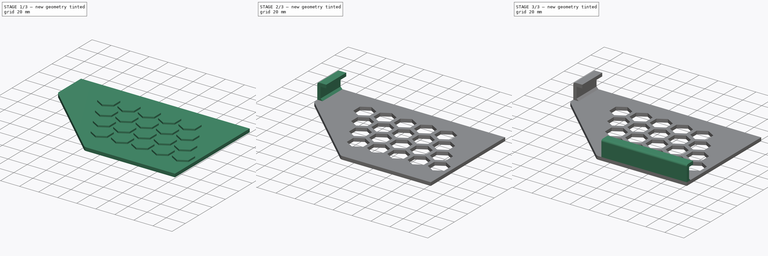
[diagram: build sequence overview — one tinted view per stage of 3, left to right]
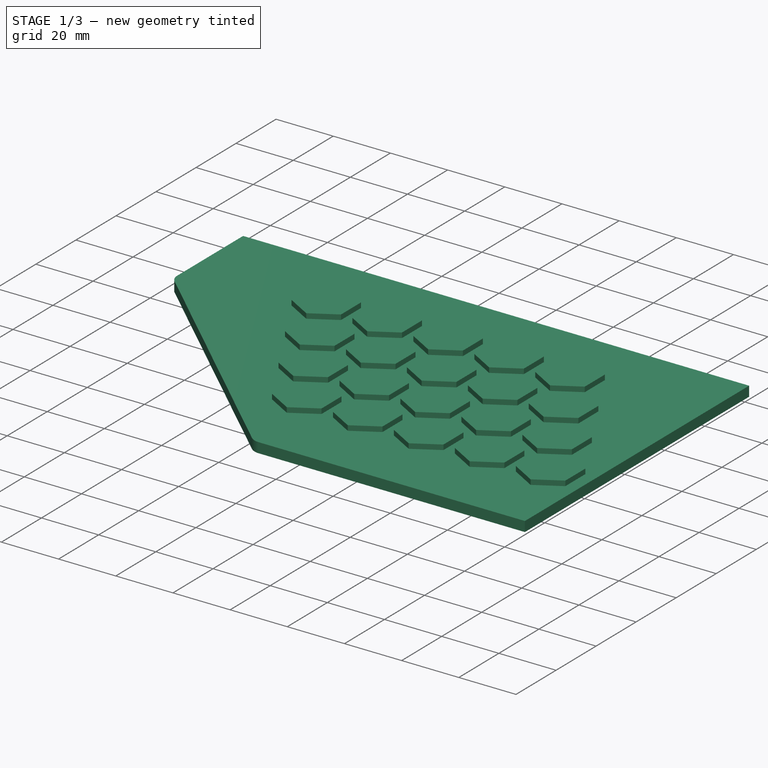
[diagram: stage 1 of 3 — iso view after this stage's code; geometry added in this stage tinted green]
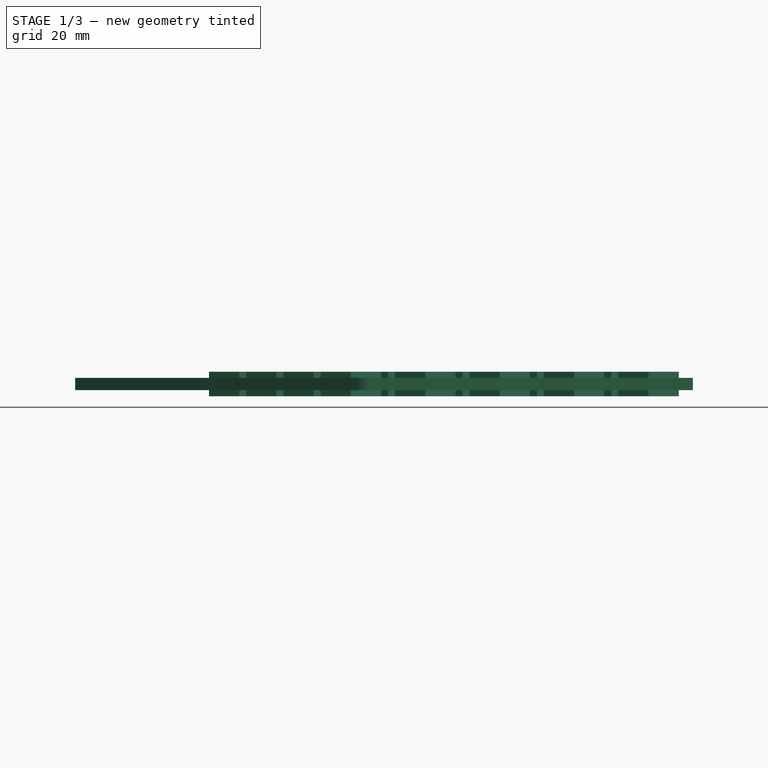
[diagram: stage 1 of 3 — front view after this stage's code; geometry added in this stage tinted green]
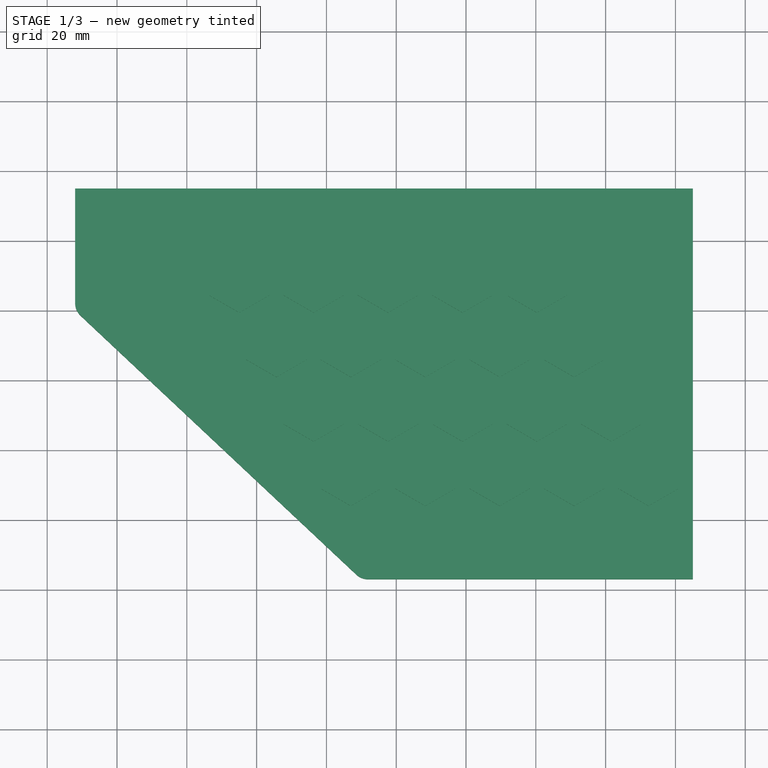
[diagram: stage 1 of 3 — top view after this stage's code; geometry added in this stage tinted green]
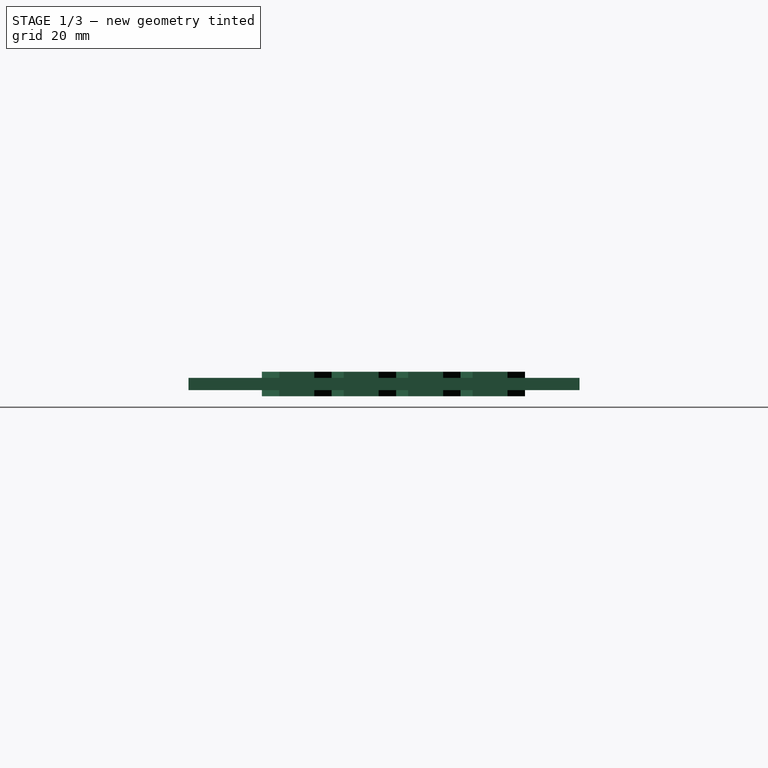
[diagram: stage 1 of 3 — right view after this stage's code; geometry added in this stage tinted green]
FCSTD DOCUMENT  (FreeCAD 1.1R20260414 (Git shallow))
Label: two
License: All rights reserved
LicenseURL: https://en.wikipedia.org/wiki/All_rights_reserved
objects: Sketcher::SketchObject×4, PartDesign::Pad×3, App::Point×2, PartDesign::Body×2, Part::FeaturePython×2, App::VarSet×1, Part::Extrusion×1, Part::Cut×1
note: 22 computed .brp shape members not serialized (recipe doc carries the construction recipe); baked Part::Feature solids carry a one-line shape summary decoded from their .brp

FEATURE [PartDesign::Body] Body002  label="brackets"
  AllowCompound = true
  Group = -> [Sketch,Pad,Sketch001,Pad001]
  Origin = -> Origin004
  Tip = -> Pad001
FEATURE [Sketcher::SketchObject] Sketch002  label="back_solid_sketch"
  ArcFitTolerance = 1e-06
  AttachmentSupport = -> [Origin]
  ExternalTypes = [0]
  FullyConstrained = true
  MakeInternals = false
  MapMode = 5
  _ExternalGeoVersion = 1
  expr: Constraints[10] = (VarSet.case_height + VarSet.bottom_bracket_width) / 2 + VarSet.model_thickness
  expr: Constraints[15] = VarSet.backplate_smooth_radius
  expr: Constraints[20] = VarSet.backplate_smooth_radius
  expr: Constraints[21] = VarSet.bottom_bracket_width / 2
  expr: Constraints[22] = VarSet.side_bracket_width / 2
  expr: Constraints[7] = VarSet.side_bracket_width + VarSet.backplate_smooth_radius
  expr: Constraints[8] = VarSet.bottom_bracket_width + VarSet.backplate_smooth_radius
  expr: Constraints[9] = (VarSet.case_width + VarSet.side_bracket_width) / 2 + VarSet.model_thickness
  sketch-geometry (9):
    g0: LineSegment StartX=-132 StartY=15 StartZ=0 EndX=45 EndY=15 EndZ=0
    g1: LineSegment StartX=45 StartY=15 StartZ=0 EndX=45 EndY=-97 EndZ=0
    g2: LineSegment StartX=45 StartY=-97 StartZ=0 EndX=-48.0204 EndY=-97 EndZ=0
    g3: LineSegment StartX=-51.4431 StartY=-95.6449 StartZ=0 EndX=-130.423 EndY=-21.4812 EndZ=0
    g4: LineSegment StartX=-132 StartY=-17.8362 StartZ=0 EndX=-132 EndY=15 EndZ=0
    g5: ArcOfCircle CenterX=-127 CenterY=-17.8362 CenterZ=0 NormalX=0 NormalY=0 NormalZ=1 AngleXU=0 Radius=5 StartAngle=3.14159 EndAngle=3.95843
    g6: GeomPoint [constr] X=-132 Y=-20 Z=0
    g7: ArcOfCircle CenterX=-48.0204 CenterY=-92 CenterZ=0 NormalX=0 NormalY=0 NormalZ=1 AngleXU=0 Radius=5 StartAngle=3.95843 EndAngle=4.71239
    g8: GeomPoint [constr] X=-50 Y=-97 Z=0
  constraints (23):
    c: Horizontal(g0)
    c: Coincident(g0,g1)
    c: Coincident(g1,g2)
    c: Coincident(g4,g0)
    c: Vertical(g4)
    c: Vertical(g1)
    c: Horizontal(g2)
    c: Distance(g4,g6) = 35
    c: Distance(g2,g8) = 95
    c: Distance(g1) = 112
    c: Distance(g0) = 177
    c: PointOnObject(g6,g3)
    c: PointOnObject(g6,g4)
    c: Tangent(g3,g5) = 1.5708
    c: Tangent(g4,g5) = 1.5708
    c: Radius(g5) = 5
    c: PointOnObject(g8,g2)
    c: PointOnObject(g8,g3)
    c: Tangent(g2,g7) = 1.5708
    c: Tangent(g3,g7) = 1.5708
    c: Radius(g7) = 5
    c: DistanceX(g0) = 45
    c: DistanceY(g0) = 15
FEATURE [PartDesign::Pad] Pad002  label="back_solid_pad"
  Direction = (0,0,1)
  Length = 3.5
  Length2 = 10
  Profile = -> Sketch002
  ReferenceAxis = -> Sketch002 [N_Axis]
  Refine = true
  SideType = 0
  Suppressed = false
  Type = 0
  Type2 = 0
  expr: Length = VarSet.model_thickness
FEATURE [Sketcher::SketchObject] Sketch003  label="hex_sketch"
  ArcFitTolerance = 1e-06
  AttachmentSupport = -> [Origin]
  ExternalTypes = [0]
  FullyConstrained = true
  MakeInternals = false
  MapMode = 5
  _ExternalGeoVersion = 1
  expr: Constraints[20] = VarSet.hex_diameter
  sketch-geometry (7):
    g0: LineSegment StartX=8.66025 StartY=-5 StartZ=0 EndX=8.66025 EndY=5 EndZ=0
    g1: LineSegment StartX=8.66025 StartY=5 StartZ=0 EndX=-2e-16 EndY=10 EndZ=0
    g2: LineSegment StartX=0 StartY=10 StartZ=0 EndX=-8.66025 EndY=5 EndZ=0
    g3: LineSegment StartX=-8.66025 StartY=5 StartZ=0 EndX=-8.66025 EndY=-5 EndZ=0
    g4: LineSegment StartX=-8.66025 StartY=-5 StartZ=0 EndX=-1.3e-15 EndY=-10 EndZ=0
    g5: LineSegment StartX=-1.6e-15 StartY=-10 StartZ=0 EndX=8.66025 EndY=-5 EndZ=0
    g6: Circle [constr] CenterX=0 CenterY=0 CenterZ=0 NormalX=0 NormalY=0 NormalZ=1 AngleXU=0 Radius=10
  constraints (17):
    c: Coincident(g0,g1)
    c: Coincident(g1,g2)
    c: Coincident(g2,g3)
    c: Coincident(g3,g4)
    c: Coincident(g4,g5)
    c: Coincident(g5,g0)
    c: Equal(g0, g1-g5) x5
    c: PointOnObject(g0,g6)
    c: PointOnObject(g1,g6)
    c: PointOnObject(g2,g6)
    c: PointOnObject(g3,g6)
    c: PointOnObject(g4,g6)
    c: PointOnObject(g5,g6)
    c: DistanceX(g6,g-1) = 0
    c: DistanceY(g6,g-1) = 0
    c: DistanceX(g1,g6) = 0
    c: Diameter(g6) = 20
FEATURE [PartDesign::Body] Body  label="back"
  AllowCompound = true
  Group = -> [Sketch002,Pad002,Sketch003]
  Origin = -> Origin
  Tip = -> Pad002
FEATURE [Part::FeaturePython] Array  label="hex_array"  # Draft array (typed FeaturePython)
  AlwaysSyncPlacement = false
  Angle = 360
  ArrayType = 0
  Axis = (0,0,1)
  Base = -> Sketch003
  Center = (0,0,0)
  Count = 20
  ExpandArray = false
  Fuse = false
  IntervalAxis = (0,0,0)
  IntervalX = (21.3205,0,0)
  IntervalY = (-10.6603,18.464,0)
  IntervalZ = (0,0,100)
  NumberCircles = 3
  NumberPolar = 5
  NumberX = 5
  NumberY = 4
  NumberZ = 1
  Placement = pos=(-53,-66,0) rot=(0,0,1;0rad)
  PlacementList = 20 placements: [(0,0,0),(-10.6603,18.464,0),(-21.3205,36.928,0),(-31.9808,55.392,0),(21.3205,0,0),(10.6603,18.464,0),(0,36.928,0),(-10.6603,55.392,0),(42.641,0,0),(31.9808,18.464,0),(21.3205,36.928,0),(10.6603,55.392,0),(63.9615,0,0),(53.3013,18.464,0),(42.641,36.928,0),(31.9808,55.392,0),(85.2821,0,0),(74.6218,18.464,0),(63.9615,36.928,0),(53.3013,55.392,0)]
  RadialDistance = 50
  ScaleList = (20) [(1,1,1),(1,1,1),(1,1,1),(1,1,1),(1,1,1),(1,1,1),(1,1,1),(1,1,1),(1,1,1),(1,1,1),(1,1,1),(1,1,1),(1,1,1),(1,1,1),(1,1,1),(1,1,1),(1,1,1),(1,1,1),(1,1,1),(1,1,1)]
  Symmetry = 1
  TangentialDistance = 25
  expr: .IntervalX.x = VarSet.hex_diameter / 1.1547 + VarSet.hex_gap
  expr: .IntervalY.x = -1 * (VarSet.hex_diameter / 1.1547 + VarSet.hex_gap) / 2
  expr: .IntervalY.y = VarSet.hex_diameter * 0.75 + VarSet.hex_gap * 0.866
FEATURE [Part::Extrusion] Extrude
  Base = -> Array
  Dir = (0,0,1)
  DirMode = 2
  FaceMakerClass = Part::FaceMakerBullseye
  FaceMakerMode = 3
  InnerWireTaper = 0
  LengthFwd = 7
  LengthRev = 0
  Placement = pos=(0,0,-1.75) rot=(0,0,1;0rad)
  Solid = true
  Symmetric = false
  expr: .Placement.Base.z = -VarSet.model_thickness / 2
  expr: LengthFwd = VarSet.model_thickness * 2
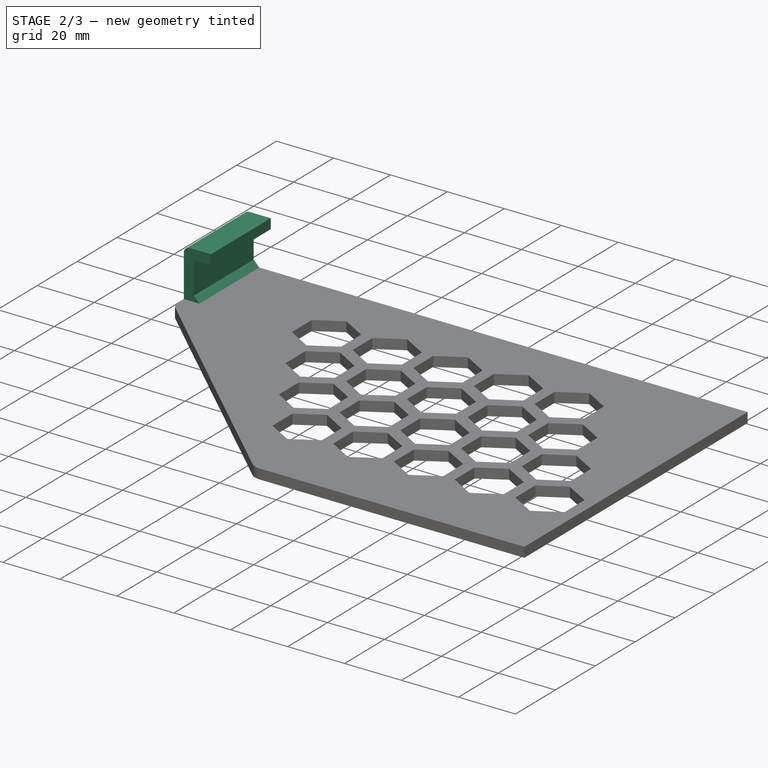
[diagram: stage 2 of 3 — iso view after this stage's code; geometry added in this stage tinted green]
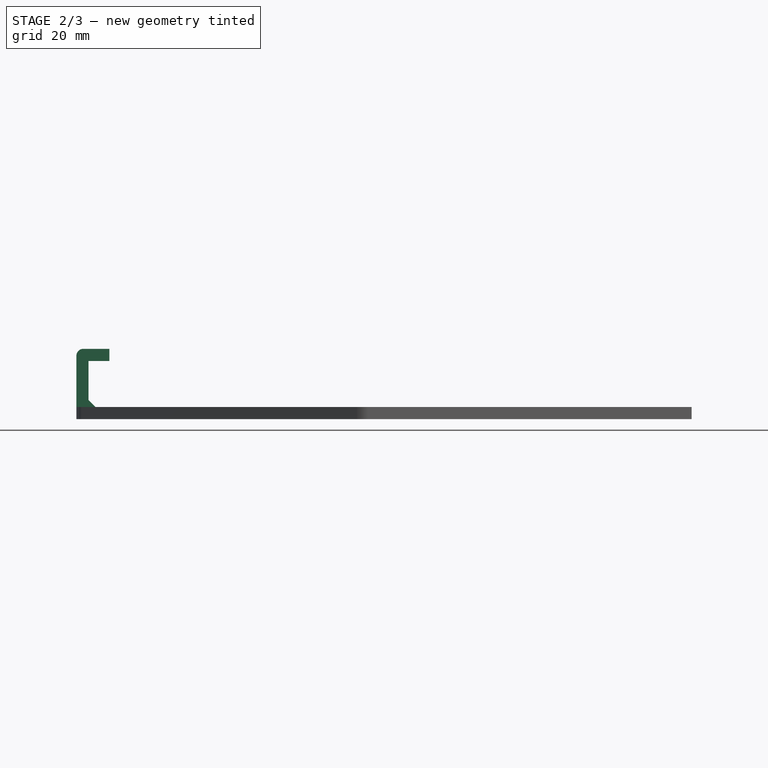
[diagram: stage 2 of 3 — front view after this stage's code; geometry added in this stage tinted green]
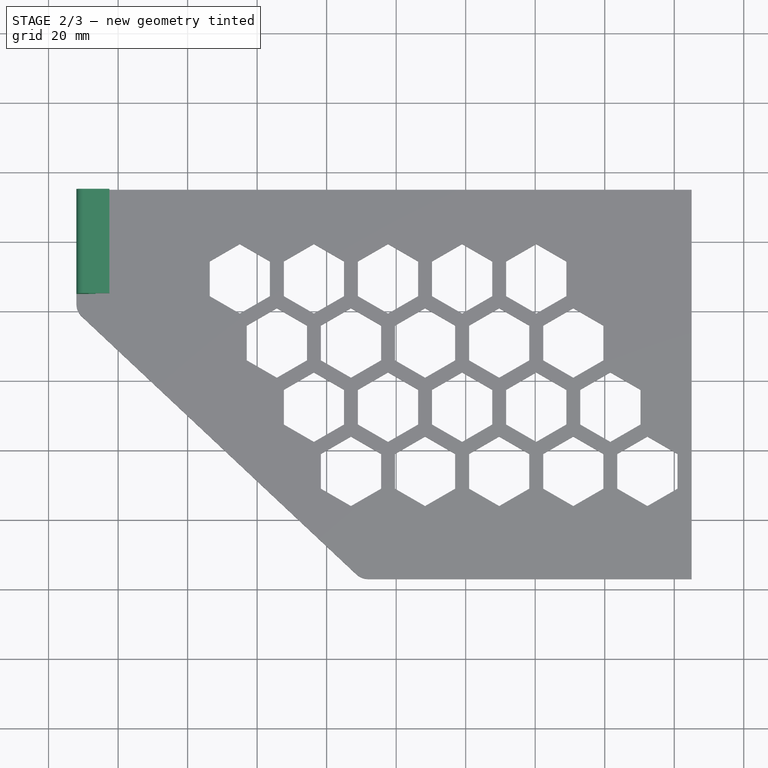
[diagram: stage 2 of 3 — top view after this stage's code; geometry added in this stage tinted green]
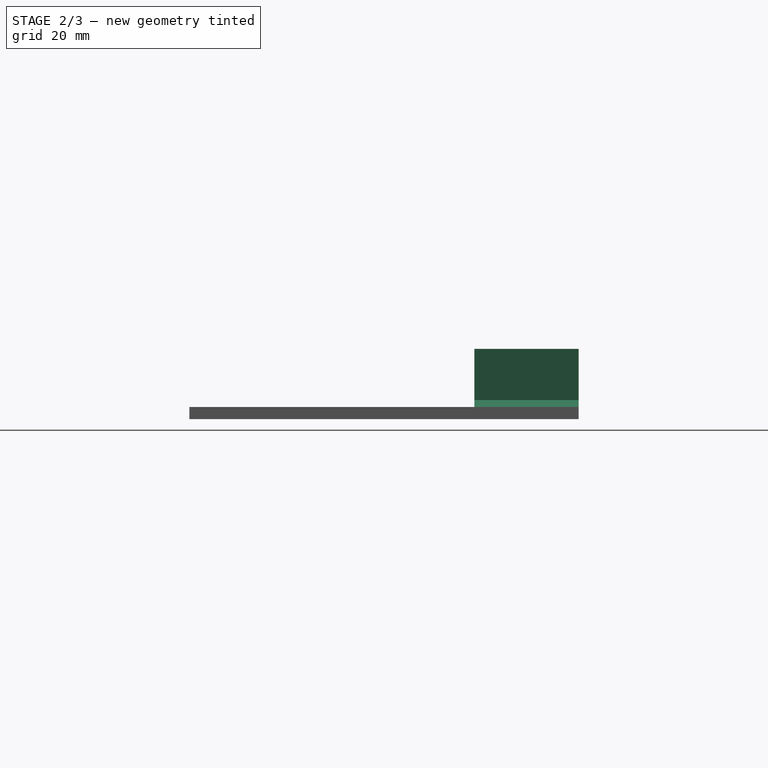
[diagram: stage 2 of 3 — right view after this stage's code; geometry added in this stage tinted green]
FEATURE [App::Point] Origin001
  Role = Origin
FEATURE [App::VarSet] VarSet
  backplate_smooth_radius = 5
  bottom_bracket_width = 90
  bottom_chamfer = 2
  bracket_overhang = 6
  case_height = 257
  case_thickness = 13.24
  case_width = 187
  corner_protrusion = 3
  corner_radius = 16
  corner_thickness = 16
  hex_diameter = 20
  hex_gap = 4
  model_thickness = 3.5
  side_bracket_width = 30
FEATURE [App::Point] Origin005  label="Origin006"
  Role = Origin
FEATURE [Sketcher::SketchObject] Sketch
  ArcFitTolerance = 1e-06
  AttachmentOffset = pos=(0,0,-15) rot=(0,0,1;0rad)
  AttachmentSupport = -> [Origin004]
  ExternalTypes = [0]
  FullyConstrained = true
  MakeInternals = false
  MapMode = 5
  Placement = pos=(0,15,-3.3e-15) rot=(1,0,0;1.5708rad)
  _ExternalGeoVersion = 1
  expr: .AttachmentOffset.Base.z = -VarSet.side_bracket_width / 2
  expr: Constraints[14] = VarSet.model_thickness
  expr: Constraints[15] = VarSet.case_thickness + 2 * VarSet.model_thickness
  expr: Constraints[16] = VarSet.bracket_overhang + VarSet.model_thickness
  expr: Constraints[17] = -(VarSet.case_height / 2 + VarSet.model_thickness)
  expr: Constraints[19] = VarSet.bottom_chamfer
  expr: Constraints[20] = VarSet.bottom_chamfer
  expr: Constraints[21] = VarSet.model_thickness
  expr: Constraints[22] = VarSet.model_thickness
  sketch-geometry (10):
    g0: LineSegment StartX=-122.5 StartY=20.24 StartZ=0 EndX=-130 EndY=20.24 EndZ=0
    g1: LineSegment StartX=-132 StartY=18.24 StartZ=0 EndX=-132 EndY=0 EndZ=0
    g2: LineSegment StartX=-132 StartY=0 StartZ=0 EndX=-126.5 EndY=0 EndZ=0
    g3: LineSegment StartX=-126.5 StartY=0 StartZ=0 EndX=-126.5 EndY=3.5 EndZ=0
    g4: LineSegment StartX=-126.5 StartY=3.5 StartZ=0 EndX=-128.5 EndY=5.5 EndZ=0
    g5: LineSegment StartX=-128.5 StartY=5.5 StartZ=0 EndX=-128.5 EndY=16.74 EndZ=0
    g6: LineSegment StartX=-128.5 StartY=16.74 StartZ=0 EndX=-122.5 EndY=16.74 EndZ=0
    g7: LineSegment StartX=-122.5 StartY=16.74 StartZ=0 EndX=-122.5 EndY=20.24 EndZ=0
    g8: ArcOfCircle CenterX=-130 CenterY=18.24 CenterZ=0 NormalX=0 NormalY=0 NormalZ=1 AngleXU=0 Radius=2 StartAngle=1.5708 EndAngle=3.14159
    g9: GeomPoint [constr] X=-132 Y=20.24 Z=0
  constraints (28):
    c: Coincident(g1,g2)
    c: Coincident(g2,g3)
    c: Coincident(g3,g4)
    c: Coincident(g4,g5)
    c: Coincident(g5,g6)
    c: Coincident(g6,g7)
    c: Coincident(g7,g0)
    c: Vertical(g1)
    c: Horizontal(g0)
    c: Vertical(g7)
    c: Horizontal(g6)
    c: Vertical(g5)
    c: Vertical(g3)
    c: Horizontal(g2)
    c: Distance(g7) = 3.5
    c: Distance(g1,g9) = 20.24
    c: Distance(g0,g9) = 9.5
    c: DistanceX(g1) = -132
    c: DistanceY(g1) = 0
    c: DistanceY(g3,g4) = 2
    c: DistanceX(g4,g3) = 2
    c: Distance(g3) = 3.5
    c: DistanceX(g9,g5) = 3.5
    c: PointOnObject(g9,g0)
    c: PointOnObject(g9,g1)
    c: Tangent(g0,g8) = -1.5708
    c: Tangent(g1,g8) = -1.5708
    c: Radius(g8) = 2
FEATURE [PartDesign::Pad] Pad  label="side_bracket"
  Direction = (0,-1,2e-16)
  Length = 30
  Length2 = 10
  Profile = -> Sketch
  ReferenceAxis = -> Sketch [N_Axis]
  Refine = true
  SideType = 0
  Suppressed = false
  Type = 0
  Type2 = 0
  expr: Length = VarSet.side_bracket_width
FEATURE [Part::Cut] Cut
  Base = -> Body
  Refine = true
  Tool = -> Extrude
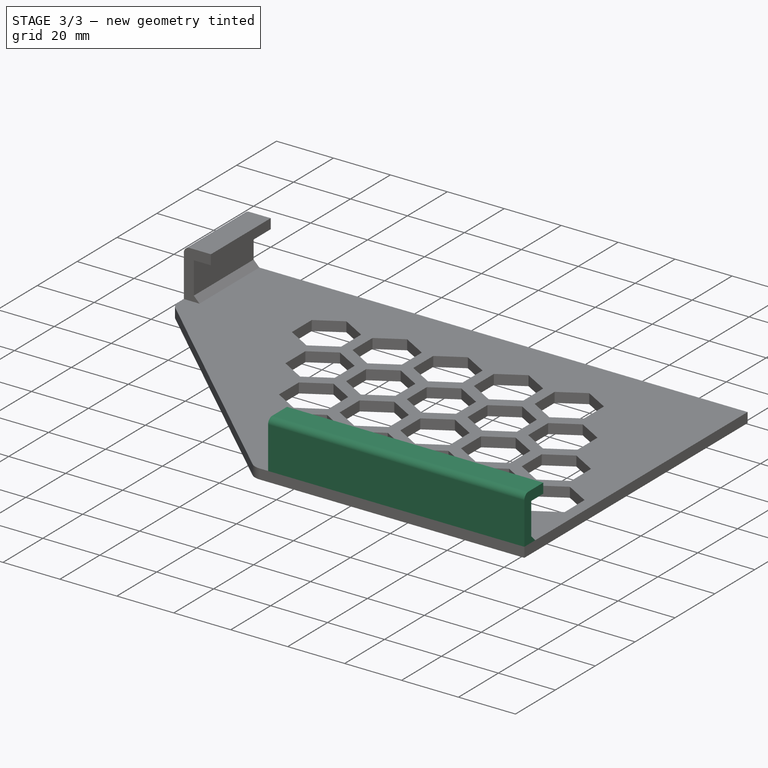
[diagram: stage 3 of 3 — iso view after this stage's code; geometry added in this stage tinted green]
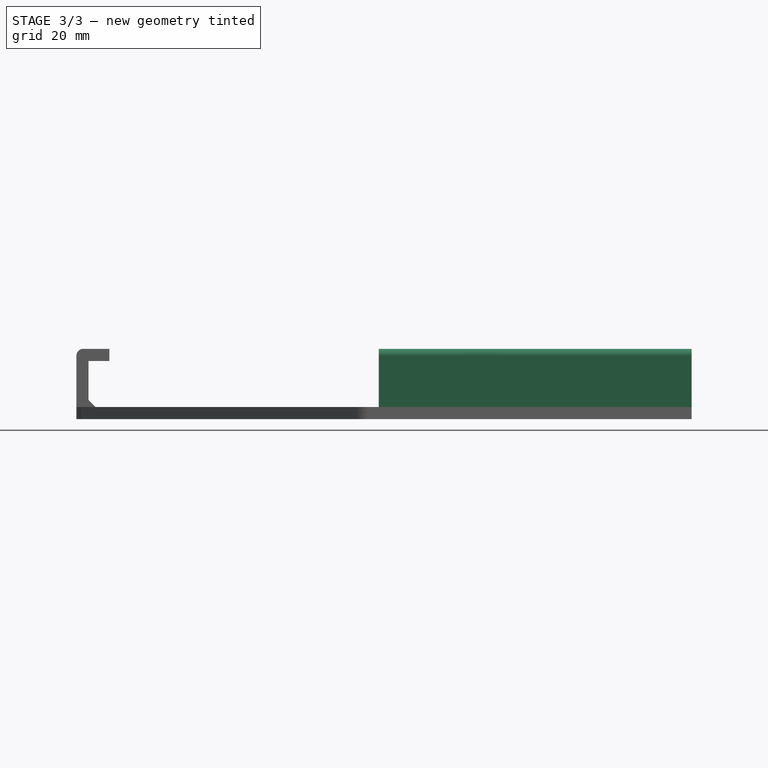
[diagram: stage 3 of 3 — front view after this stage's code; geometry added in this stage tinted green]
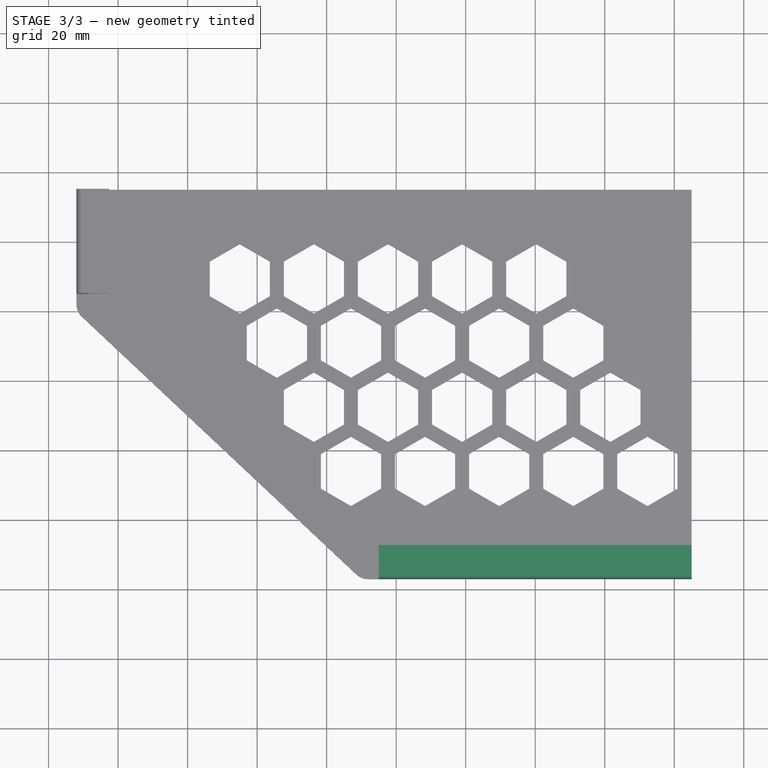
[diagram: stage 3 of 3 — top view after this stage's code; geometry added in this stage tinted green]
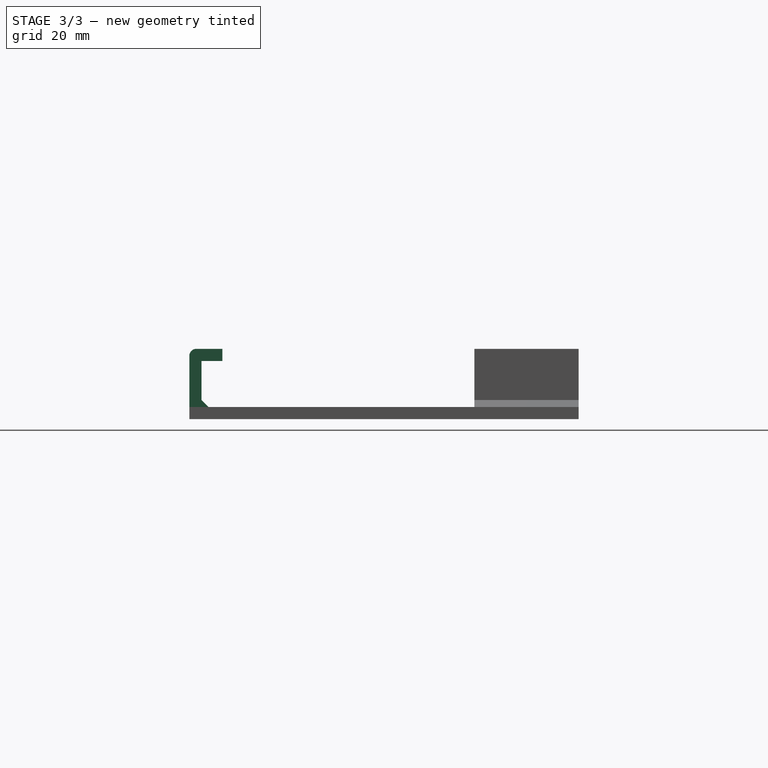
[diagram: stage 3 of 3 — right view after this stage's code; geometry added in this stage tinted green]
FEATURE [Sketcher::SketchObject] Sketch001
  ArcFitTolerance = 1e-06
  AttachmentOffset = pos=(0,0,-45) rot=(0,0,1;0rad)
  AttachmentSupport = -> [Origin004]
  ExternalTypes = [0]
  FullyConstrained = true
  MakeInternals = false
  MapMode = 5
  Placement = pos=(-45,0,0) rot=(0.57735,0.57735,0.57735;2.0944rad)
  _ExternalGeoVersion = 1
  expr: .AttachmentOffset.Base.z = -VarSet.bottom_bracket_width / 2
  expr: Constraints[13] = VarSet.bracket_overhang
  expr: Constraints[15] = VarSet.model_thickness
  expr: Constraints[16] = VarSet.model_thickness
  expr: Constraints[17] = VarSet.case_thickness
  expr: Constraints[18] = VarSet.model_thickness
  expr: Constraints[19] = VarSet.bottom_chamfer
  expr: Constraints[20] = VarSet.bottom_chamfer
  expr: Constraints[21] = -(VarSet.case_width / 2 + VarSet.model_thickness)
  sketch-geometry (10):
    g0: LineSegment StartX=-87.5 StartY=20.24 StartZ=0 EndX=-95 EndY=20.24 EndZ=0
    g1: LineSegment StartX=-97 StartY=18.24 StartZ=0 EndX=-97 EndY=0 EndZ=0
    g2: LineSegment StartX=-97 StartY=0 StartZ=0 EndX=-91.5 EndY=0 EndZ=0
    g3: LineSegment StartX=-91.5 StartY=0 StartZ=0 EndX=-91.5 EndY=3.5 EndZ=0
    g4: LineSegment StartX=-91.5 StartY=3.5 StartZ=0 EndX=-93.5 EndY=5.5 EndZ=0
    g5: LineSegment StartX=-93.5 StartY=5.5 StartZ=0 EndX=-93.5 EndY=16.74 EndZ=0
    g6: LineSegment StartX=-93.5 StartY=16.74 StartZ=0 EndX=-87.5 EndY=16.74 EndZ=0
    g7: LineSegment StartX=-87.5 StartY=16.74 StartZ=0 EndX=-87.5 EndY=20.24 EndZ=0
    g8: ArcOfCircle CenterX=-95 CenterY=18.24 CenterZ=0 NormalX=0 NormalY=0 NormalZ=1 AngleXU=0 Radius=2 StartAngle=1.5708 EndAngle=3.14159
    g9: GeomPoint [constr] X=-97 Y=20.24 Z=0
  constraints (28):
    c: Coincident(g1,g2)
    c: Coincident(g2,g3)
    c: Coincident(g3,g4)
    c: Coincident(g4,g5)
    c: Coincident(g5,g6)
    c: Coincident(g6,g7)
    c: Coincident(g7,g0)
    c: Horizontal(g6)
    c: Horizontal(g0)
    c: Vertical(g1)
    c: Vertical(g5)
    c: Vertical(g3)
    c: Horizontal(g2)
    c: Distance(g6) = 6
    c: Vertical(g7)
    c: DistanceX(g9,g5) = 3.5
    c: Distance(g7) = 3.5
    c: DistanceY(g3,g5) = 13.24
    c: Distance(g3) = 3.5
    c: DistanceX(g4,g3) = 2
    c: DistanceY(g3,g4) = 2
    c: DistanceX(g1) = -97
    c: DistanceY(g1) = 0
    c: PointOnObject(g9,g0)
    c: PointOnObject(g9,g1)
    c: Tangent(g0,g8) = -1.5708
    c: Tangent(g1,g8) = -1.5708
    c: Radius(g8) = 2
FEATURE [PartDesign::Pad] Pad001  label="bottom_bracket"
  BaseFeature = -> Pad
  Direction = (1,0,0)
  Length = 90
  Length2 = 10
  Profile = -> Sketch001
  ReferenceAxis = -> Sketch001 [N_Axis]
  Refine = true
  SideType = 0
  Suppressed = false
  Type = 0
  Type2 = 0
  expr: Length = VarSet.bottom_bracket_width
FEATURE [Part::FeaturePython] Connect  # WARN: FeaturePython — macro-defined, semantics opaque (R4)
  Objects = -> [Body002,Cut]
  Tolerance = 0
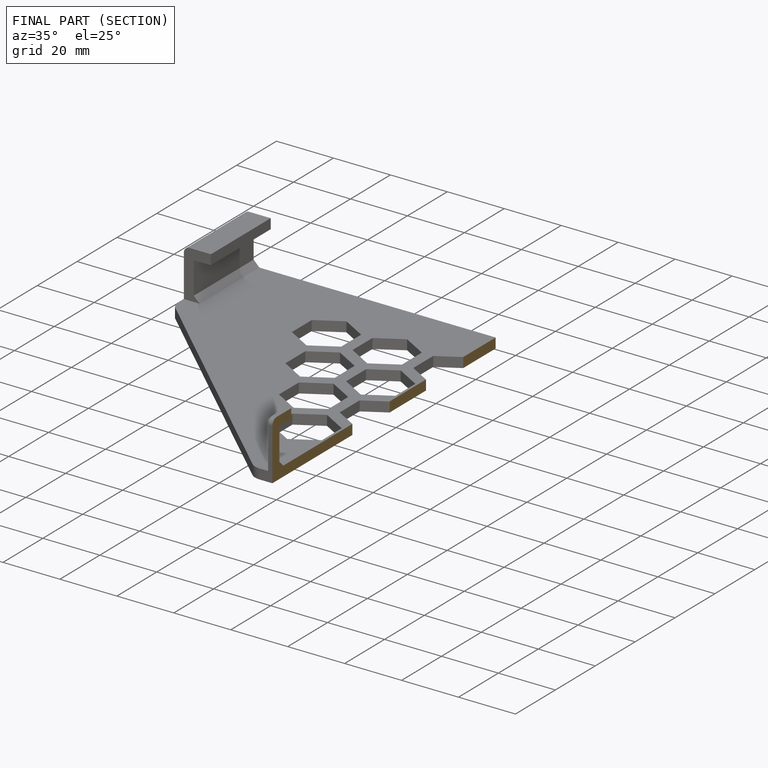
[diagram: finished part — half-section view (interior)]
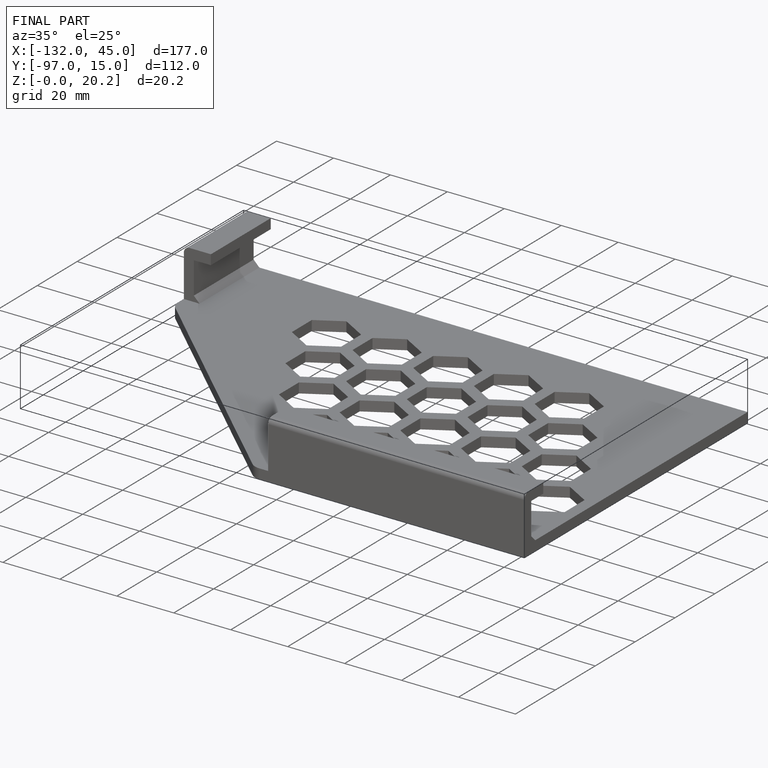
[diagram: finished part — iso view with bounding-box wireframe]
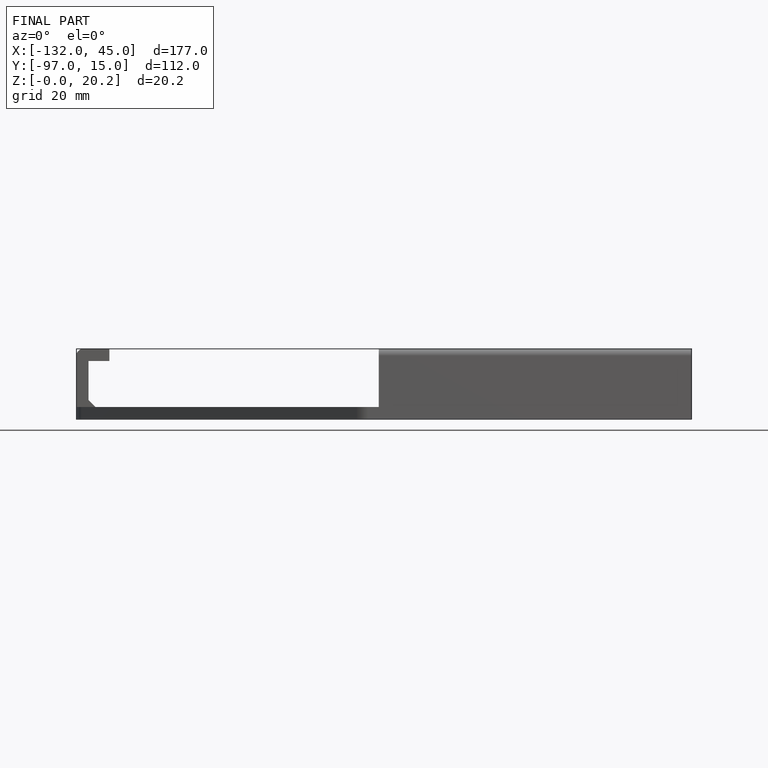
[diagram: finished part — front view with bounding-box wireframe]
